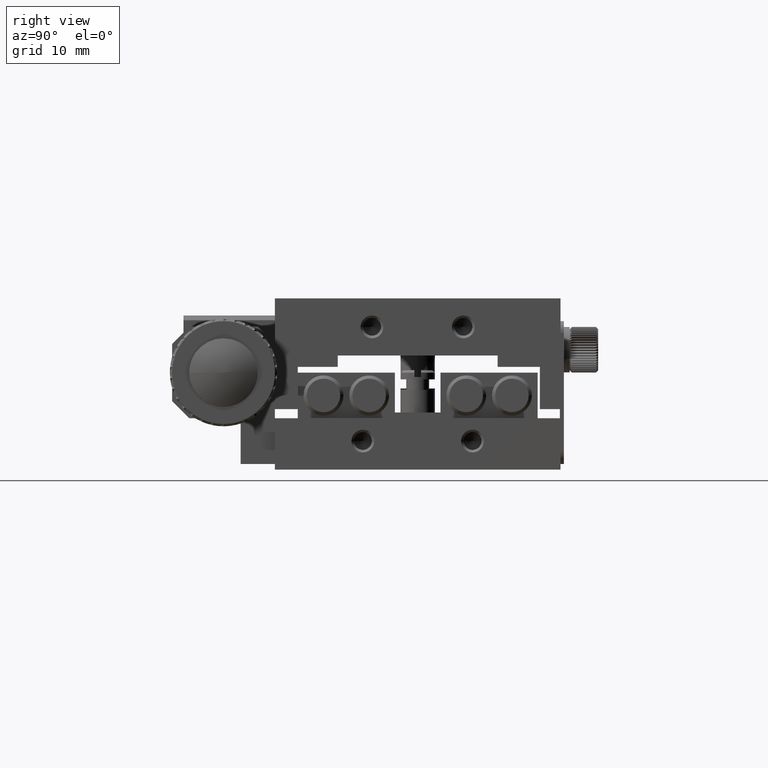
[diagram: clean part render]
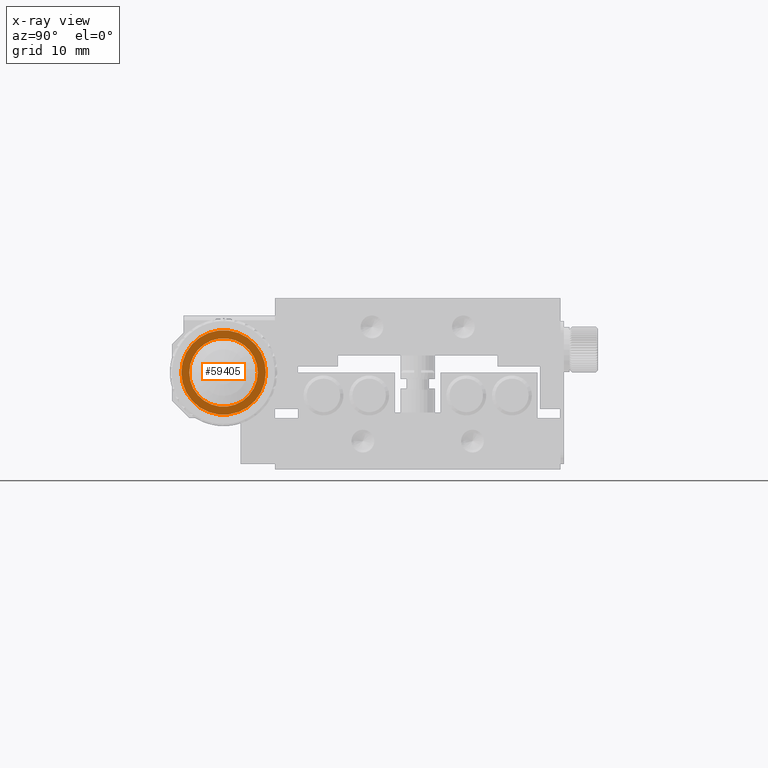
[diagram: x-ray — body ghosted, one internal face saturated and labeled with its STEP entity id]
A machine part, right view, then the same camera in x-ray: the body is ghosted and one INTERNAL B-rep face — a face not visible from any outside direction — is saturated and labeled: STEP entity #59405.
In plain terms, the highlighted planar face has unit normal (1, 0, 0).
Its self-contained STEP definition (entity closure, byte-faithful):
#2572 = CARTESIAN_POINT ( 'NONE',  ( 10.75000000000000000, -17.00000000000000000, 8.500000000000000000 ) ) ;
#9521 = AXIS2_PLACEMENT_3D ( 'NONE', #2572, #75258, #68644 ) ;
#9727 = EDGE_LOOP ( 'NONE', ( #82694 ) ) ;
#10779 = EDGE_CURVE ( 'NONE', #60739, #60739, #17223, .T. ) ;
#12350 = CARTESIAN_POINT ( 'NONE',  ( 10.75000000000000000, -13.30000000000000071, 8.500000000000000000 ) ) ;
#14946 = DIRECTION ( 'NONE',  ( 0.000000000000000000, 1.000000000000000000, 0.000000000000000000 ) ) ;
#14958 = DIRECTION ( 'NONE',  ( 0.000000000000000000, 1.000000000000000000, 0.000000000000000000 ) ) ;
#14983 = EDGE_LOOP ( 'NONE', ( #85645 ) ) ;
#17223 = CIRCLE ( 'NONE', #33761, 2.999999999999999112 ) ;
#19095 = FACE_OUTER_BOUND ( 'NONE', #14983, .T. ) ;
#27239 = CIRCLE ( 'NONE', #39329, 3.700000000000000178 ) ;
#32777 = PLANE ( 'NONE',  #9521 ) ;
#32871 = CARTESIAN_POINT ( 'NONE',  ( 10.75000000000000000, -14.00000000000000178, 8.500000000000000000 ) ) ;
#33761 = AXIS2_PLACEMENT_3D ( 'NONE', #50340, #35250, #14946 ) ;
#35250 = DIRECTION ( 'NONE',  ( -1.000000000000000000, -0.000000000000000000, 0.000000000000000000 ) ) ;
#39329 = AXIS2_PLACEMENT_3D ( 'NONE', #51763, #73473, #14958 ) ;
#50340 = CARTESIAN_POINT ( 'NONE',  ( 10.75000000000000000, -17.00000000000000000, 8.500000000000000000 ) ) ;
#51763 = CARTESIAN_POINT ( 'NONE',  ( 10.75000000000000000, -17.00000000000000000, 8.500000000000000000 ) ) ;
#59405 = ADVANCED_FACE ( 'NONE', ( #60180, #19095 ), #32777, .T. ) ;
#60180 = FACE_BOUND ( 'NONE', #9727, .T. ) ;
#60739 = VERTEX_POINT ( 'NONE', #32871 ) ;
#68644 = DIRECTION ( 'NONE',  ( 0.000000000000000000, -1.000000000000000000, 0.000000000000000000 ) ) ;
#73473 = DIRECTION ( 'NONE',  ( 1.000000000000000000, 0.000000000000000000, -0.000000000000000000 ) ) ;
#75258 = DIRECTION ( 'NONE',  ( 1.000000000000000000, 0.000000000000000000, 0.000000000000000000 ) ) ;
#77003 = VERTEX_POINT ( 'NONE', #12350 ) ;
#82694 = ORIENTED_EDGE ( 'NONE', *, *, #10779, .T. ) ;
#84504 = EDGE_CURVE ( 'NONE', #77003, #77003, #27239, .T. ) ;
#85645 = ORIENTED_EDGE ( 'NONE', *, *, #84504, .T. ) ;